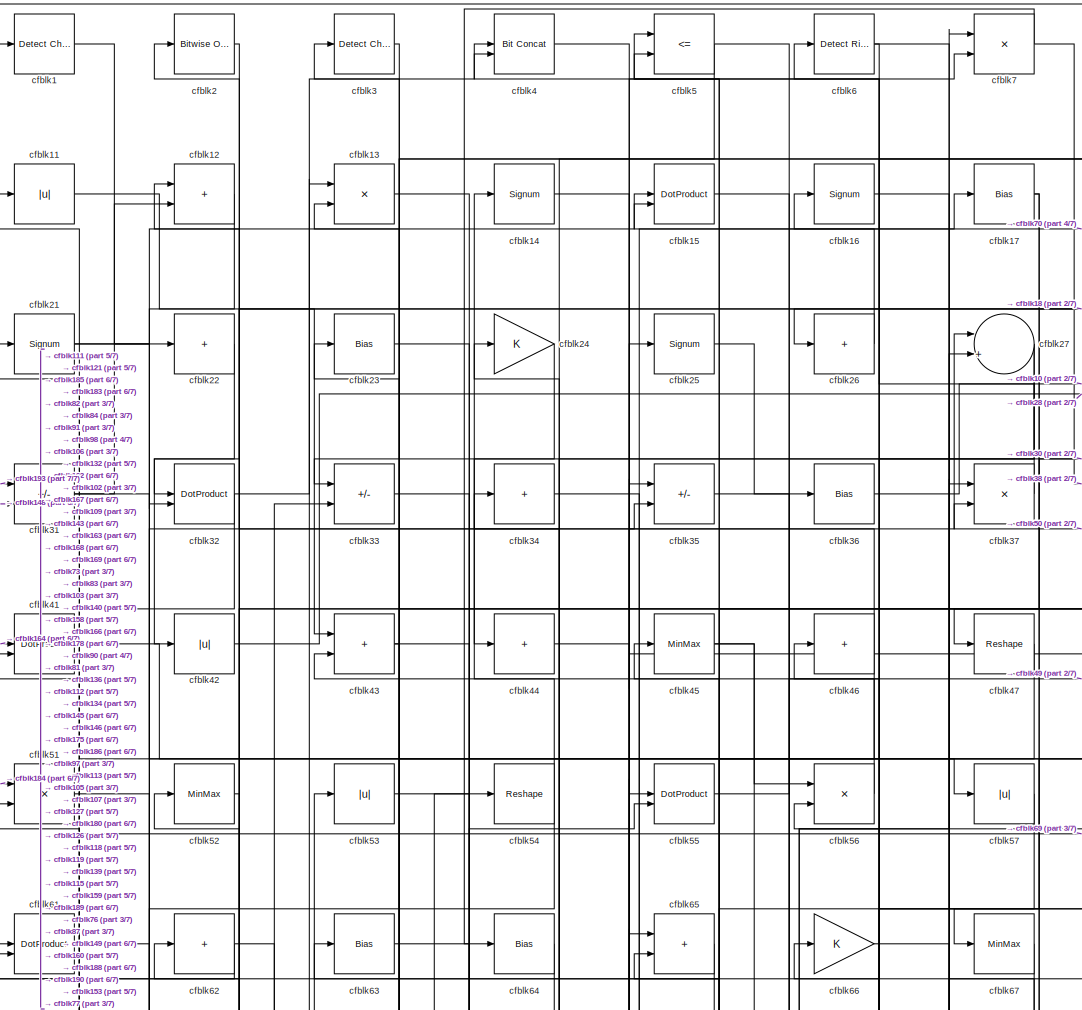
[diagram: root canvas - part 1/7, top center region]
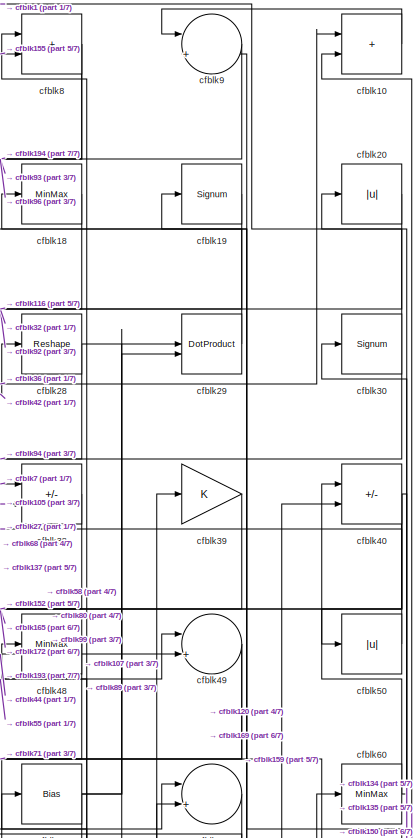
[diagram: root canvas - part 2/7, top right region]
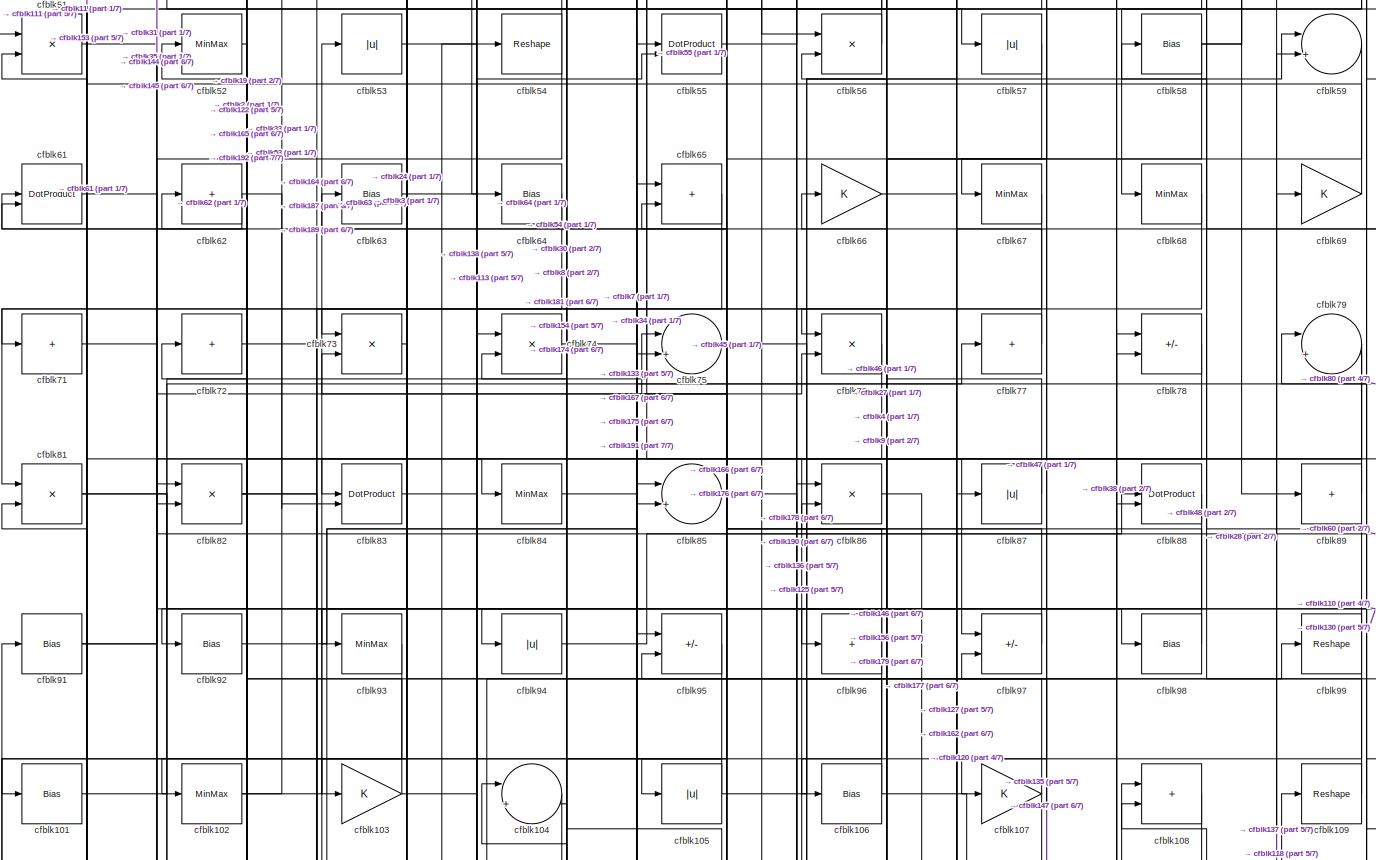
[diagram: root canvas - part 3/7, full width, middle band]
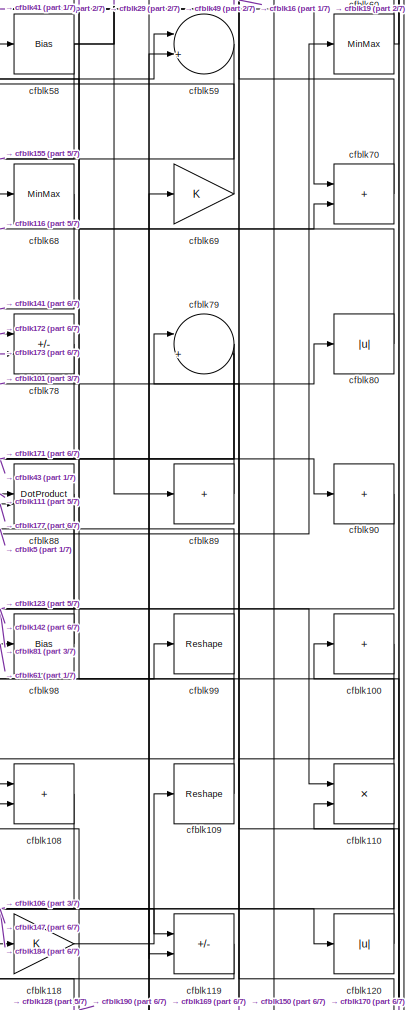
[diagram: root canvas - part 4/7, middle right region]
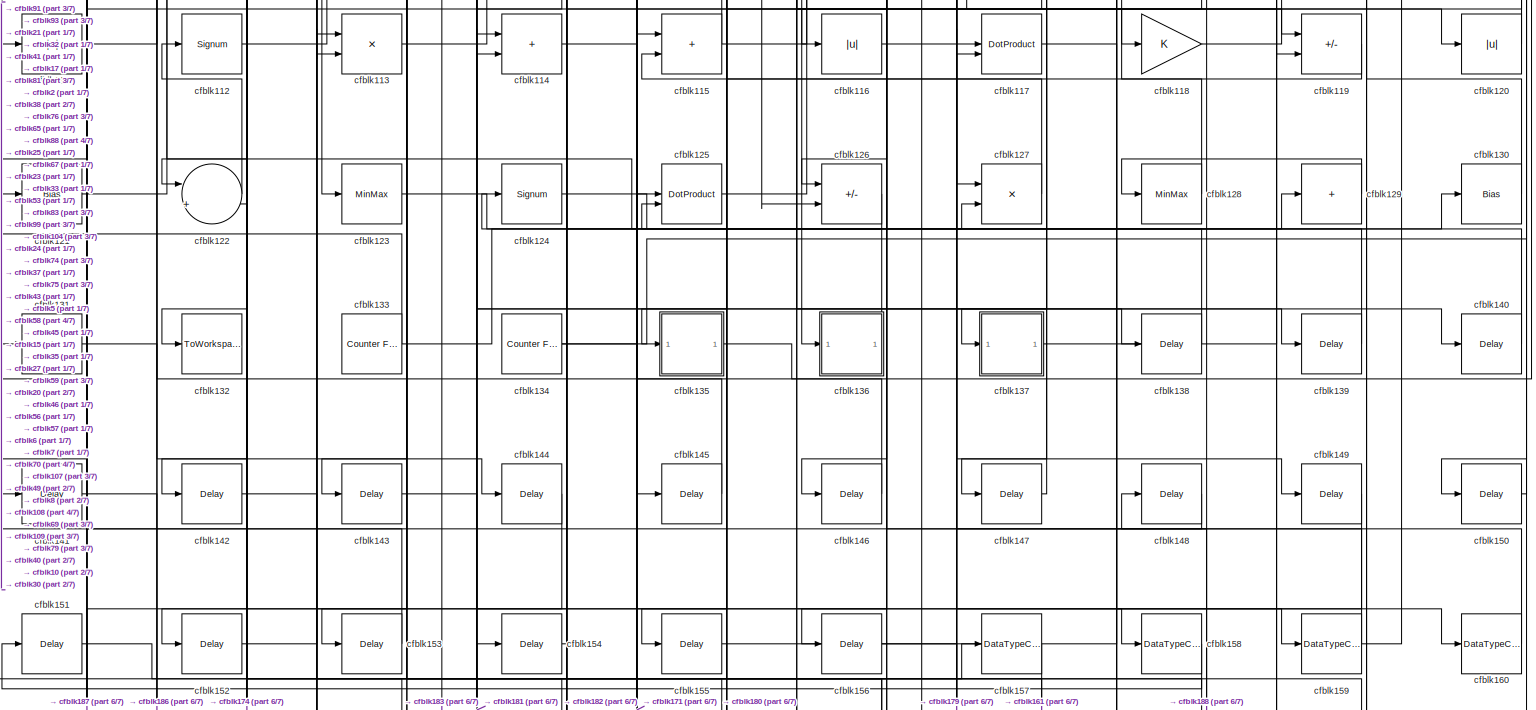
[diagram: root canvas - part 5/7, full width, bottom band]
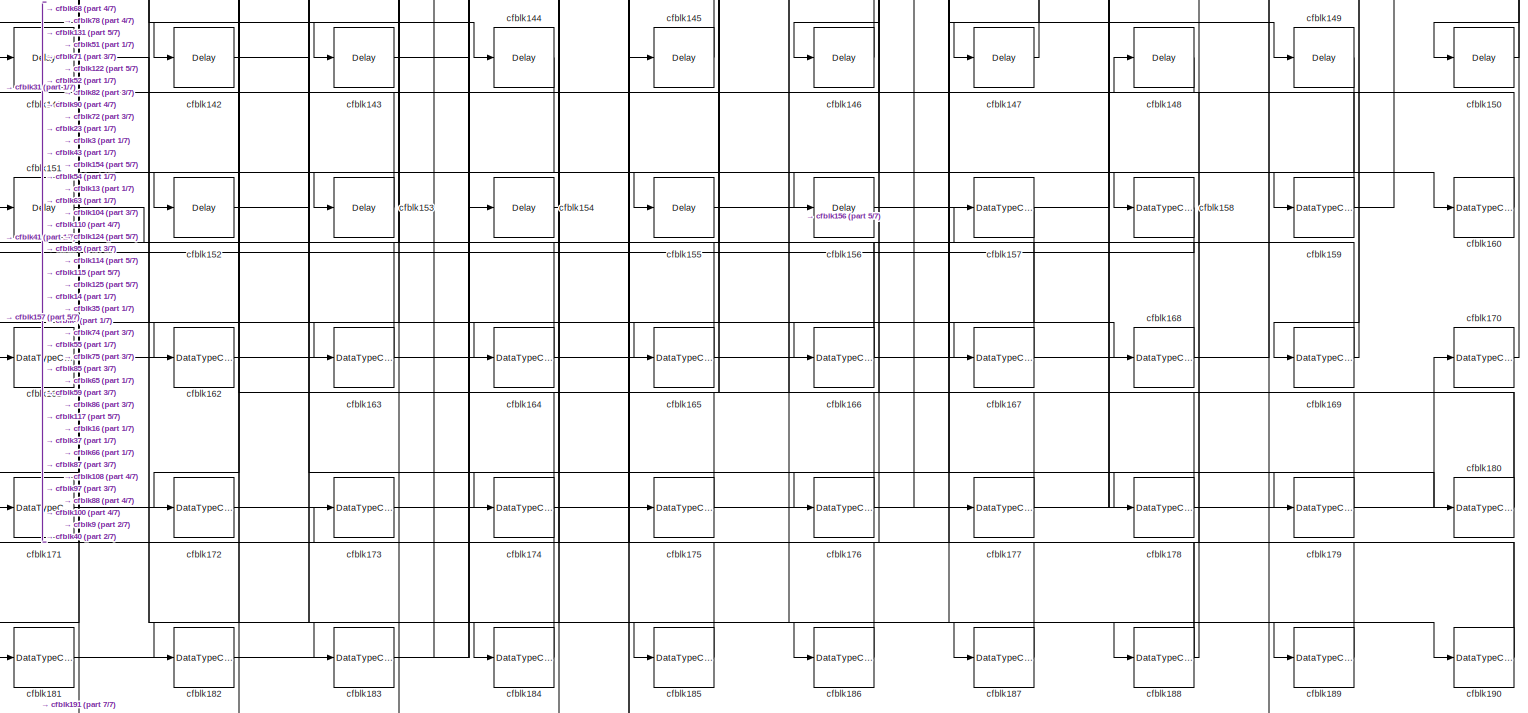
[diagram: root canvas - part 6/7, full width, bottom band]
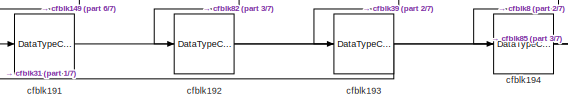
[diagram: root canvas - part 7/7, bottom left region]
MODEL slx_9b19d6e29598
KIND model
CONFIG AbsTol = auto
CONFIG EnableMultiTasking = off
CONFIG FixedStep = auto
CONFIG MaxStep = auto
CONFIG MinStep = auto
CONFIG RelTol = 1e-3
CONFIG SampleTimeConstraint = Unconstrained
CONFIG SolverName = VariableStepAuto
CONFIG StartTime = 0.0
CONFIG StopTime = 10.0
BLOCK [Reference] cfblk1  REF=simulink/Logic and Bit
Operations/Detect
Change
  LibrarySourceBlock = hdlsllib/Logic and Bit\nOperations/Detect\nChange
  SourceBlock = simulink/Logic and Bit\nOperations/Detect\nChange
  SourceType = Detect Change
BLOCK [Sum] cfblk10
  IconShape = rectangular
BLOCK [Sum] cfblk100
  IconShape = rectangular
  Inputs = +
BLOCK [Bias] cfblk101
  Bias = 0.0
  SaturateOnIntegerOverflow = off
BLOCK [MinMax] cfblk102
BLOCK [Gain] cfblk103
BLOCK [Sum] cfblk104
  Inputs = |++
BLOCK [Abs] cfblk105
  SaturateOnIntegerOverflow = off
BLOCK [Bias] cfblk106
  Bias = 0.0
  SaturateOnIntegerOverflow = off
BLOCK [Gain] cfblk107
BLOCK [Sum] cfblk108
  IconShape = rectangular
BLOCK [Reshape] cfblk109
BLOCK [Abs] cfblk11
  SaturateOnIntegerOverflow = off
BLOCK [Product] cfblk110
  Inputs = */
  RndMeth = Zero
  SaturateOnIntegerOverflow = on
BLOCK [Abs] cfblk111
  SaturateOnIntegerOverflow = off
BLOCK [Signum] cfblk112
BLOCK [Product] cfblk113
  Inputs = */
  RndMeth = Zero
  SaturateOnIntegerOverflow = on
BLOCK [Sum] cfblk114
  IconShape = rectangular
BLOCK [Sum] cfblk115
  IconShape = rectangular
BLOCK [Abs] cfblk116
  SaturateOnIntegerOverflow = off
BLOCK [DotProduct] cfblk117
  OutDataTypeStr = Inherit: Inherit via internal rule
BLOCK [Gain] cfblk118
BLOCK [Sum] cfblk119
  IconShape = rectangular
  Inputs = +-
BLOCK [Sum] cfblk12
  IconShape = rectangular
BLOCK [Abs] cfblk120
  SaturateOnIntegerOverflow = off
BLOCK [Bias] cfblk121
  Bias = 0.0
  SaturateOnIntegerOverflow = off
BLOCK [Sum] cfblk122
  Inputs = |++
BLOCK [MinMax] cfblk123
BLOCK [Signum] cfblk124
BLOCK [DotProduct] cfblk125
  OutDataTypeStr = Inherit: Inherit via internal rule
BLOCK [Sum] cfblk126
  IconShape = rectangular
  Inputs = +-
BLOCK [Product] cfblk127
  Inputs = */
  RndMeth = Zero
  SaturateOnIntegerOverflow = on
BLOCK [MinMax] cfblk128
BLOCK [Sum] cfblk129
  IconShape = rectangular
  Inputs = +
BLOCK [Product] cfblk13
  Inputs = */
  RndMeth = Zero
  SaturateOnIntegerOverflow = on
BLOCK [Bias] cfblk130
  Bias = 0.0
  SaturateOnIntegerOverflow = off
BLOCK [Sum] cfblk131
  IconShape = rectangular
  Inputs = +
BLOCK [ToWorkspace] cfblk132
  MaxDataPoints = inf
  SampleTime = -1
  SaveFormat = Timeseries
  VariableName = simout
BLOCK [Reference] cfblk133  REF=hdlsllib/Sources/Counter
Free-Running
  SourceBlock = hdlsllib/Sources/Counter\nFree-Running
  SourceType = Counter Free-Running
BLOCK [Reference] cfblk134  REF=hdlsllib/Sources/Counter
Free-Running
  SourceBlock = hdlsllib/Sources/Counter\nFree-Running
  SourceType = Counter Free-Running
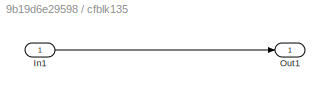
BLOCK [SubSystem] cfblk135
  LibrarySourceBlock = hdlsllib/Ports &\nSubsystems/Subsystem
BLOCK [Inport] cfblk135/In1
BLOCK [Outport] cfblk135/Out1
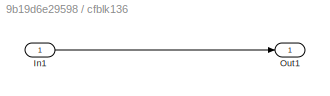
BLOCK [SubSystem] cfblk136
  LibrarySourceBlock = hdlsllib/Ports &\nSubsystems/Subsystem
BLOCK [Inport] cfblk136/In1
BLOCK [Outport] cfblk136/Out1
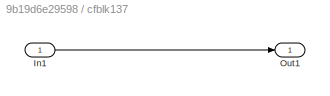
BLOCK [SubSystem] cfblk137
  LibrarySourceBlock = hdlsllib/Ports &\nSubsystems/Subsystem
BLOCK [Inport] cfblk137/In1
BLOCK [Outport] cfblk137/Out1
BLOCK [Delay] cfblk138
  InputPortMap = u0
  SampleTime = 1
BLOCK [Delay] cfblk139
  InputPortMap = u0
  SampleTime = 1
BLOCK [Signum] cfblk14
BLOCK [Delay] cfblk140
  InputPortMap = u0
  SampleTime = 1
BLOCK [Delay] cfblk141
  InputPortMap = u0
  SampleTime = 1
BLOCK [Delay] cfblk142
  InputPortMap = u0
  SampleTime = 1
BLOCK [Delay] cfblk143
  InputPortMap = u0
  SampleTime = 1
BLOCK [Delay] cfblk144
  InputPortMap = u0
  SampleTime = 1
BLOCK [Delay] cfblk145
  InputPortMap = u0
  SampleTime = 1
BLOCK [Delay] cfblk146
  InputPortMap = u0
  SampleTime = 1
BLOCK [Delay] cfblk147
  InputPortMap = u0
  SampleTime = 1
BLOCK [Delay] cfblk148
  InputPortMap = u0
  SampleTime = 1
BLOCK [Delay] cfblk149
  InputPortMap = u0
  SampleTime = 1
BLOCK [DotProduct] cfblk15
  OutDataTypeStr = Inherit: Inherit via internal rule
BLOCK [Delay] cfblk150
  InputPortMap = u0
  SampleTime = 1
BLOCK [Delay] cfblk151
  InputPortMap = u0
  SampleTime = 1
BLOCK [Delay] cfblk152
  InputPortMap = u0
  SampleTime = 1
BLOCK [Delay] cfblk153
  InputPortMap = u0
  SampleTime = 1
BLOCK [Delay] cfblk154
  InputPortMap = u0
  SampleTime = 1
BLOCK [Delay] cfblk155
  InputPortMap = u0
  SampleTime = 1
BLOCK [Delay] cfblk156
  InputPortMap = u0
  SampleTime = 1
BLOCK [DataTypeConversion] cfblk157
  OutDataTypeStr = uint8
  RndMeth = Floor
  SaturateOnIntegerOverflow = off
BLOCK [DataTypeConversion] cfblk158
  OutDataTypeStr = uint8
  RndMeth = Floor
  SaturateOnIntegerOverflow = off
BLOCK [DataTypeConversion] cfblk159
  RndMeth = Floor
  SaturateOnIntegerOverflow = off
BLOCK [Signum] cfblk16
BLOCK [DataTypeConversion] cfblk160
  OutDataTypeStr = uint8
  RndMeth = Floor
  SaturateOnIntegerOverflow = off
BLOCK [DataTypeConversion] cfblk161
  OutDataTypeStr = uint8
  RndMeth = Floor
  SaturateOnIntegerOverflow = off
BLOCK [DataTypeConversion] cfblk162
  OutDataTypeStr = uint8
  RndMeth = Floor
  SaturateOnIntegerOverflow = off
BLOCK [DataTypeConversion] cfblk163
  OutDataTypeStr = uint8
  RndMeth = Floor
  SaturateOnIntegerOverflow = off
BLOCK [DataTypeConversion] cfblk164
  RndMeth = Floor
  SaturateOnIntegerOverflow = off
BLOCK [DataTypeConversion] cfblk165
  OutDataTypeStr = uint8
  RndMeth = Floor
  SaturateOnIntegerOverflow = off
BLOCK [DataTypeConversion] cfblk166
  RndMeth = Floor
  SaturateOnIntegerOverflow = off
BLOCK [DataTypeConversion] cfblk167
  OutDataTypeStr = uint8
  RndMeth = Floor
  SaturateOnIntegerOverflow = off
BLOCK [DataTypeConversion] cfblk168
  OutDataTypeStr = uint8
  RndMeth = Floor
  SaturateOnIntegerOverflow = off
BLOCK [DataTypeConversion] cfblk169
  RndMeth = Floor
  SaturateOnIntegerOverflow = off
BLOCK [Bias] cfblk17
  Bias = 0.0
  SaturateOnIntegerOverflow = off
BLOCK [DataTypeConversion] cfblk170
  OutDataTypeStr = uint8
  RndMeth = Floor
  SaturateOnIntegerOverflow = off
BLOCK [DataTypeConversion] cfblk171
  OutDataTypeStr = uint8
  RndMeth = Floor
  SaturateOnIntegerOverflow = off
BLOCK [DataTypeConversion] cfblk172
  OutDataTypeStr = uint8
  RndMeth = Floor
  SaturateOnIntegerOverflow = off
BLOCK [DataTypeConversion] cfblk173
  OutDataTypeStr = uint8
  RndMeth = Floor
  SaturateOnIntegerOverflow = off
BLOCK [DataTypeConversion] cfblk174
  RndMeth = Floor
  SaturateOnIntegerOverflow = off
BLOCK [DataTypeConversion] cfblk175
  OutDataTypeStr = uint8
  RndMeth = Floor
  SaturateOnIntegerOverflow = off
BLOCK [DataTypeConversion] cfblk176
  OutDataTypeStr = uint8
  RndMeth = Floor
  SaturateOnIntegerOverflow = off
BLOCK [DataTypeConversion] cfblk177
  RndMeth = Floor
  SaturateOnIntegerOverflow = off
BLOCK [DataTypeConversion] cfblk178
  OutDataTypeStr = uint8
  RndMeth = Floor
  SaturateOnIntegerOverflow = off
BLOCK [DataTypeConversion] cfblk179
  OutDataTypeStr = uint8
  RndMeth = Floor
  SaturateOnIntegerOverflow = off
BLOCK [MinMax] cfblk18
BLOCK [DataTypeConversion] cfblk180
  RndMeth = Floor
  SaturateOnIntegerOverflow = off
BLOCK [DataTypeConversion] cfblk181
  OutDataTypeStr = uint8
  RndMeth = Floor
  SaturateOnIntegerOverflow = off
BLOCK [DataTypeConversion] cfblk182
  OutDataTypeStr = uint8
  RndMeth = Floor
  SaturateOnIntegerOverflow = off
BLOCK [DataTypeConversion] cfblk183
  RndMeth = Floor
  SaturateOnIntegerOverflow = off
BLOCK [DataTypeConversion] cfblk184
  OutDataTypeStr = uint8
  RndMeth = Floor
  SaturateOnIntegerOverflow = off
BLOCK [DataTypeConversion] cfblk185
  OutDataTypeStr = uint8
  RndMeth = Floor
  SaturateOnIntegerOverflow = off
BLOCK [DataTypeConversion] cfblk186
  OutDataTypeStr = uint8
  RndMeth = Floor
  SaturateOnIntegerOverflow = off
BLOCK [DataTypeConversion] cfblk187
  OutDataTypeStr = uint8
  RndMeth = Floor
  SaturateOnIntegerOverflow = off
BLOCK [DataTypeConversion] cfblk188
  RndMeth = Floor
  SaturateOnIntegerOverflow = off
BLOCK [DataTypeConversion] cfblk189
  OutDataTypeStr = uint8
  RndMeth = Floor
  SaturateOnIntegerOverflow = off
BLOCK [Signum] cfblk19
BLOCK [DataTypeConversion] cfblk190
  RndMeth = Floor
  SaturateOnIntegerOverflow = off
BLOCK [DataTypeConversion] cfblk191
  OutDataTypeStr = uint8
  RndMeth = Floor
  SaturateOnIntegerOverflow = off
BLOCK [DataTypeConversion] cfblk192
  OutDataTypeStr = uint8
  RndMeth = Floor
  SaturateOnIntegerOverflow = off
BLOCK [DataTypeConversion] cfblk193
  OutDataTypeStr = uint8
  RndMeth = Floor
  SaturateOnIntegerOverflow = off
BLOCK [DataTypeConversion] cfblk194
  OutDataTypeStr = uint8
  RndMeth = Floor
  SaturateOnIntegerOverflow = off
BLOCK [Reference] cfblk2  REF=simulink/Logic and Bit
Operations/Bitwise
Operator
  LibrarySourceBlock = hdlsllib/Logic and Bit\nOperations/Bitwise\nOperator
  SourceBlock = simulink/Logic and Bit\nOperations/Bitwise\nOperator
  SourceType = Bitwise Operator
BLOCK [Abs] cfblk20
  SaturateOnIntegerOverflow = off
BLOCK [Signum] cfblk21
BLOCK [Sum] cfblk22
  IconShape = rectangular
  Inputs = +
BLOCK [Bias] cfblk23
  Bias = 0.0
  SaturateOnIntegerOverflow = off
BLOCK [Gain] cfblk24
BLOCK [Signum] cfblk25
BLOCK [Sum] cfblk26
  IconShape = rectangular
  Inputs = +
BLOCK [Sum] cfblk27
  Inputs = |++
BLOCK [Reshape] cfblk28
BLOCK [DotProduct] cfblk29
  OutDataTypeStr = Inherit: Inherit via internal rule
BLOCK [Reference] cfblk3  REF=simulink/Logic and Bit
Operations/Detect
Change
  LibrarySourceBlock = hdlsllib/Logic and Bit\nOperations/Detect\nChange
  SourceBlock = simulink/Logic and Bit\nOperations/Detect\nChange
  SourceType = Detect Change
BLOCK [Signum] cfblk30
BLOCK [Sum] cfblk31
  IconShape = rectangular
  Inputs = +-
BLOCK [DotProduct] cfblk32
  OutDataTypeStr = Inherit: Inherit via internal rule
BLOCK [Sum] cfblk33
  IconShape = rectangular
  Inputs = +-
BLOCK [Sum] cfblk34
  IconShape = rectangular
  Inputs = +
BLOCK [Sum] cfblk35
  IconShape = rectangular
  Inputs = +-
BLOCK [Bias] cfblk36
  Bias = 0.0
  SaturateOnIntegerOverflow = off
BLOCK [Product] cfblk37
  Inputs = */
  RndMeth = Zero
  SaturateOnIntegerOverflow = on
BLOCK [Sum] cfblk38
  IconShape = rectangular
  Inputs = +-
BLOCK [Gain] cfblk39
BLOCK [Reference] cfblk4  REF=hdlsllib/Logic and Bit
Operations/Bit Concat
  SourceBlock = hdlsllib/Logic and Bit\nOperations/Bit Concat
  SourceType = Bit Concat
BLOCK [Sum] cfblk40
  IconShape = rectangular
  Inputs = +-
BLOCK [DotProduct] cfblk41
  OutDataTypeStr = Inherit: Inherit via internal rule
BLOCK [Abs] cfblk42
  SaturateOnIntegerOverflow = off
BLOCK [Sum] cfblk43
  IconShape = rectangular
BLOCK [Sum] cfblk44
  IconShape = rectangular
  Inputs = +
BLOCK [MinMax] cfblk45
BLOCK [Sum] cfblk46
  IconShape = rectangular
  Inputs = +
BLOCK [Reshape] cfblk47
BLOCK [MinMax] cfblk48
BLOCK [Sum] cfblk49
  Inputs = |++
BLOCK [RelationalOperator] cfblk5
  InputSameDT = off
  Operator = <=
  OutDataTypeStr = boolean
BLOCK [Abs] cfblk50
  SaturateOnIntegerOverflow = off
BLOCK [Product] cfblk51
  Inputs = */
  RndMeth = Zero
  SaturateOnIntegerOverflow = on
BLOCK [MinMax] cfblk52
BLOCK [Abs] cfblk53
  SaturateOnIntegerOverflow = off
BLOCK [Reshape] cfblk54
BLOCK [DotProduct] cfblk55
  OutDataTypeStr = Inherit: Inherit via internal rule
BLOCK [Product] cfblk56
  Inputs = */
  RndMeth = Zero
  SaturateOnIntegerOverflow = on
BLOCK [Abs] cfblk57
  SaturateOnIntegerOverflow = off
BLOCK [Bias] cfblk58
  Bias = 0.0
  SaturateOnIntegerOverflow = off
BLOCK [Sum] cfblk59
  Inputs = |++
BLOCK [Reference] cfblk6  REF=hdlsllib/Logic and Bit
Operations/Detect Rise
Positive
  SourceBlock = hdlsllib/Logic and Bit\nOperations/Detect Rise\nPositive
  SourceType = Detect Rise Positive
BLOCK [MinMax] cfblk60
BLOCK [DotProduct] cfblk61
  OutDataTypeStr = Inherit: Inherit via internal rule
BLOCK [Sum] cfblk62
  IconShape = rectangular
  Inputs = +
BLOCK [Bias] cfblk63
  Bias = 0.0
  SaturateOnIntegerOverflow = off
BLOCK [Bias] cfblk64
  Bias = 0.0
  SaturateOnIntegerOverflow = off
BLOCK [Sum] cfblk65
  IconShape = rectangular
BLOCK [Gain] cfblk66
BLOCK [MinMax] cfblk67
BLOCK [MinMax] cfblk68
BLOCK [Gain] cfblk69
BLOCK [Product] cfblk7
  Inputs = */
  RndMeth = Zero
  SaturateOnIntegerOverflow = on
BLOCK [Sum] cfblk70
  IconShape = rectangular
BLOCK [Sum] cfblk71
  IconShape = rectangular
  Inputs = +
BLOCK [Sum] cfblk72
  IconShape = rectangular
  Inputs = +
BLOCK [Product] cfblk73
  Inputs = */
  RndMeth = Zero
  SaturateOnIntegerOverflow = on
BLOCK [Product] cfblk74
  Inputs = */
  RndMeth = Zero
  SaturateOnIntegerOverflow = on
BLOCK [Sum] cfblk75
  Inputs = |++
BLOCK [Product] cfblk76
  Inputs = */
  RndMeth = Zero
  SaturateOnIntegerOverflow = on
BLOCK [Sum] cfblk77
  IconShape = rectangular
  Inputs = +
BLOCK [Sum] cfblk78
  IconShape = rectangular
  Inputs = +-
BLOCK [Sum] cfblk79
  Inputs = |++
BLOCK [Sum] cfblk8
  IconShape = rectangular
BLOCK [Abs] cfblk80
  SaturateOnIntegerOverflow = off
BLOCK [Product] cfblk81
  Inputs = */
  RndMeth = Zero
  SaturateOnIntegerOverflow = on
BLOCK [Product] cfblk82
  Inputs = */
  RndMeth = Zero
  SaturateOnIntegerOverflow = on
BLOCK [DotProduct] cfblk83
  OutDataTypeStr = Inherit: Inherit via internal rule
BLOCK [MinMax] cfblk84
BLOCK [Sum] cfblk85
  Inputs = |++
BLOCK [Product] cfblk86
  Inputs = */
  RndMeth = Zero
  SaturateOnIntegerOverflow = on
BLOCK [Abs] cfblk87
  SaturateOnIntegerOverflow = off
BLOCK [DotProduct] cfblk88
  OutDataTypeStr = Inherit: Inherit via internal rule
BLOCK [Sum] cfblk89
  IconShape = rectangular
  Inputs = +
BLOCK [Sum] cfblk9
  Inputs = |++
BLOCK [Sum] cfblk90
  IconShape = rectangular
  Inputs = +
BLOCK [Bias] cfblk91
  Bias = 0.0
  SaturateOnIntegerOverflow = off
BLOCK [Bias] cfblk92
  Bias = 0.0
  SaturateOnIntegerOverflow = off
BLOCK [MinMax] cfblk93
BLOCK [Abs] cfblk94
  SaturateOnIntegerOverflow = off
BLOCK [Sum] cfblk95
  IconShape = rectangular
  Inputs = +-
BLOCK [Sum] cfblk96
  IconShape = rectangular
  Inputs = +
BLOCK [Sum] cfblk97
  IconShape = rectangular
  Inputs = +-
BLOCK [Bias] cfblk98
  Bias = 0.0
  SaturateOnIntegerOverflow = off
BLOCK [Reshape] cfblk99
LINE cfblk100:1 -> cfblk169:1
LINE cfblk101:1 -> cfblk80:1
NET cfblk102:1 -> cfblk33:2, cfblk53:1
NET cfblk103:1 -> cfblk55:2, cfblk62:1
LINE cfblk104:1 -> cfblk181:1
NET cfblk105:1 -> cfblk102:1, cfblk38:2
NET cfblk106:1 -> cfblk120:1, cfblk2:1
NET cfblk107:1 -> cfblk135:1, cfblk45:1
LINE cfblk108:1 -> cfblk147:1
LINE cfblk109:1 -> cfblk3:1
LINE cfblk10:1 -> cfblk9:1
NET cfblk110:1 -> cfblk184:1, cfblk58:1
NET cfblk111:1 -> cfblk21:1, cfblk41:2, cfblk88:1
LINE cfblk112:1 -> cfblk25:1
LINE cfblk113:1 -> cfblk99:1
LINE cfblk114:1 -> cfblk180:1
NET cfblk115:1 -> cfblk27:2, cfblk43:2
LINE cfblk116:1 -> cfblk70:2
LINE cfblk117:1 -> cfblk159:1
LINE cfblk118:1 -> cfblk109:1
LINE cfblk119:1 -> cfblk115:2
LINE cfblk11:1 -> cfblk43:1
LINE cfblk120:1 -> cfblk19:1
LINE cfblk121:1 -> cfblk17:1
LINE cfblk122:1 -> cfblk112:1
LINE cfblk123:1 -> cfblk127:2
LINE cfblk124:1 -> cfblk129:1
LINE cfblk125:1 -> cfblk59:1
LINE cfblk126:1 -> cfblk125:2
LINE cfblk127:1 -> cfblk5:2
LINE cfblk128:1 -> cfblk108:1
LINE cfblk129:1 -> cfblk128:1
LINE cfblk12:1 -> cfblk32:2
LINE cfblk130:1 -> cfblk79:1
LINE cfblk131:1 -> cfblk186:1
NET cfblk133:1 -> cfblk75:2, cfblk91:1
NET cfblk134:1 -> cfblk30:1, cfblk37:2
LINE cfblk135/In1:1 -> cfblk135/Out1:1
LINE cfblk135:1 -> cfblk10:2
LINE cfblk136/In1:1 -> cfblk136/Out1:1
LINE cfblk136:1 -> cfblk24:1
LINE cfblk137/In1:1 -> cfblk137/Out1:1
LINE cfblk137:1 -> cfblk69:1
LINE cfblk138:1 -> cfblk74:2
LINE cfblk139:1 -> cfblk56:2
LINE cfblk13:1 -> cfblk166:1
LINE cfblk140:1 -> cfblk7:1
LINE cfblk141:1 -> cfblk168:1
LINE cfblk142:1 -> cfblk176:1
LINE cfblk143:1 -> cfblk185:1
LINE cfblk144:1 -> cfblk182:1
LINE cfblk145:1 -> cfblk82:1
LINE cfblk146:1 -> cfblk65:1
LINE cfblk147:1 -> cfblk97:2
LINE cfblk148:1 -> cfblk31:2
LINE cfblk149:1 -> cfblk191:1
LINE cfblk14:1 -> cfblk175:1
LINE cfblk150:1 -> cfblk110:2
LINE cfblk151:1 -> cfblk157:1
LINE cfblk152:1 -> cfblk113:1
LINE cfblk153:1 -> cfblk81:2
LINE cfblk154:1 -> cfblk104:2
LINE cfblk155:1 -> cfblk8:2
LINE cfblk156:1 -> cfblk179:1
LINE cfblk157:1 -> cfblk161:1
LINE cfblk158:1 -> cfblk151:1
NET cfblk159:1 -> cfblk40:2, cfblk46:1
LINE cfblk15:1 -> cfblk119:1
LINE cfblk160:1 -> cfblk117:1
LINE cfblk161:1 -> cfblk117:2
LINE cfblk162:1 -> cfblk87:1
LINE cfblk163:1 -> cfblk52:1
NET cfblk164:1 -> cfblk41:1, cfblk59:2
LINE cfblk165:1 -> cfblk72:1
NET cfblk166:1 -> cfblk104:1, cfblk75:1
LINE cfblk167:1 -> cfblk13:1
LINE cfblk168:1 -> cfblk13:2
NET cfblk169:1 -> cfblk23:1, cfblk9:2
LINE cfblk16:1 -> cfblk149:1
LINE cfblk170:1 -> cfblk100:1
LINE cfblk171:1 -> cfblk115:1
LINE cfblk172:1 -> cfblk78:1
LINE cfblk173:1 -> cfblk78:2
NET cfblk174:1 -> cfblk122:2, cfblk170:1, cfblk173:1
LINE cfblk175:1 -> cfblk95:1
LINE cfblk176:1 -> cfblk95:2
NET cfblk177:1 -> cfblk74:1, cfblk88:2
LINE cfblk178:1 -> cfblk86:1
LINE cfblk179:1 -> cfblk86:2
NET cfblk17:1 -> cfblk47:1, cfblk67:1
NET cfblk180:1 -> cfblk55:1, cfblk65:2
LINE cfblk181:1 -> cfblk114:1
LINE cfblk182:1 -> cfblk114:2
NET cfblk183:1 -> cfblk154:1, cfblk54:1
LINE cfblk184:1 -> cfblk51:1
LINE cfblk185:1 -> cfblk51:2
LINE cfblk186:1 -> cfblk35:1
LINE cfblk187:1 -> cfblk131:1
NET cfblk188:1 -> cfblk124:1, cfblk125:1, cfblk148:1
LINE cfblk189:1 -> cfblk66:1
LINE cfblk18:1 -> cfblk32:1
NET cfblk190:1 -> cfblk108:2, cfblk37:1
LINE cfblk191:1 -> cfblk85:1
LINE cfblk192:1 -> cfblk85:2
LINE cfblk193:1 -> cfblk31:1
LINE cfblk194:1 -> cfblk39:1
LINE cfblk19:1 -> cfblk92:1
LINE cfblk1:1 -> cfblk22:1
LINE cfblk20:1 -> cfblk116:1
NET cfblk21:1 -> cfblk15:1, cfblk57:1
LINE cfblk22:1 -> cfblk42:1
LINE cfblk23:1 -> cfblk119:2
LINE cfblk24:1 -> cfblk83:1
LINE cfblk25:1 -> cfblk36:1
LINE cfblk26:1 -> cfblk15:2
NET cfblk27:1 -> cfblk44:1, cfblk76:1
NET cfblk28:1 -> cfblk107:1, cfblk89:1
LINE cfblk29:1 -> cfblk18:1
LINE cfblk2:1 -> cfblk132:1
NET cfblk30:1 -> cfblk1:1, cfblk94:1
NET cfblk31:1 -> cfblk12:2, cfblk84:1
NET cfblk32:1 -> cfblk121:1, cfblk4:2
LINE cfblk33:1 -> cfblk140:1
LINE cfblk34:1 -> cfblk97:1
LINE cfblk35:1 -> cfblk118:1
LINE cfblk36:1 -> cfblk10:1
LINE cfblk37:1 -> cfblk6:1
LINE cfblk38:1 -> cfblk152:1
LINE cfblk39:1 -> cfblk193:1
LINE cfblk3:1 -> cfblk163:1
NET cfblk40:1 -> cfblk150:1, cfblk165:1, cfblk172:1, cfblk50:1
LINE cfblk41:1 -> cfblk70:1
LINE cfblk42:1 -> cfblk28:1
NET cfblk43:1 -> cfblk143:1, cfblk90:1
LINE cfblk44:1 -> cfblk49:2
NET cfblk45:1 -> cfblk126:2, cfblk56:1
NET cfblk46:1 -> cfblk12:1, cfblk73:1
LINE cfblk47:1 -> cfblk105:1
LINE cfblk48:1 -> cfblk71:1
NET cfblk49:1 -> cfblk137:1, cfblk68:1
LINE cfblk4:1 -> cfblk145:1
LINE cfblk50:1 -> cfblk27:1
LINE cfblk51:1 -> cfblk183:1
LINE cfblk52:1 -> cfblk162:1
LINE cfblk53:1 -> cfblk158:1
NET cfblk54:1 -> cfblk14:1, cfblk82:2
LINE cfblk55:1 -> cfblk49:1
LINE cfblk56:1 -> cfblk34:1
LINE cfblk57:1 -> cfblk126:1
NET cfblk58:1 -> cfblk155:1, cfblk29:1, cfblk29:2
LINE cfblk59:1 -> cfblk146:1
NET cfblk5:1 -> cfblk139:1, cfblk33:1
NET cfblk60:1 -> cfblk20:1, cfblk40:1
LINE cfblk61:1 -> cfblk98:1
NET cfblk62:1 -> cfblk61:2, cfblk83:2
LINE cfblk63:1 -> cfblk178:1
LINE cfblk64:1 -> cfblk81:1
LINE cfblk65:1 -> cfblk113:2
LINE cfblk66:1 -> cfblk188:1
LINE cfblk67:1 -> cfblk153:1
LINE cfblk68:1 -> cfblk141:1
LINE cfblk69:1 -> cfblk11:1
NET cfblk6:1 -> cfblk160:1, cfblk26:1
LINE cfblk70:1 -> cfblk16:1
LINE cfblk71:1 -> cfblk144:1
LINE cfblk72:1 -> cfblk164:1
LINE cfblk73:1 -> cfblk103:1
LINE cfblk74:1 -> cfblk167:1
LINE cfblk75:1 -> cfblk127:1
LINE cfblk76:1 -> cfblk122:1
LINE cfblk77:1 -> cfblk61:1
LINE cfblk78:1 -> cfblk171:1
NET cfblk79:1 -> cfblk106:1, cfblk136:1
NET cfblk7:1 -> cfblk38:1, cfblk64:1
LINE cfblk80:1 -> cfblk48:1
NET cfblk81:1 -> cfblk110:1, cfblk130:1
NET cfblk82:1 -> cfblk187:1, cfblk189:1, cfblk192:1
LINE cfblk83:1 -> cfblk138:1
LINE cfblk84:1 -> cfblk7:2
LINE cfblk85:1 -> cfblk190:1
LINE cfblk86:1 -> cfblk177:1
LINE cfblk87:1 -> cfblk4:1
LINE cfblk88:1 -> cfblk123:1
LINE cfblk89:1 -> cfblk79:2
NET cfblk8:1 -> cfblk194:1, cfblk93:1
LINE cfblk90:1 -> cfblk142:1
NET cfblk91:1 -> cfblk35:2, cfblk76:2
LINE cfblk92:1 -> cfblk77:1
LINE cfblk93:1 -> cfblk111:1
LINE cfblk94:1 -> cfblk60:1
LINE cfblk95:1 -> cfblk174:1
NET cfblk96:1 -> cfblk101:1, cfblk73:2
LINE cfblk97:1 -> cfblk63:1
LINE cfblk98:1 -> cfblk5:1
NET cfblk99:1 -> cfblk156:1, cfblk8:1
LINE cfblk9:1 -> cfblk96:1
note: NET lines group one-source signal fan-out (src -> all destinations, sorted); 1:1 wires keep LINE
